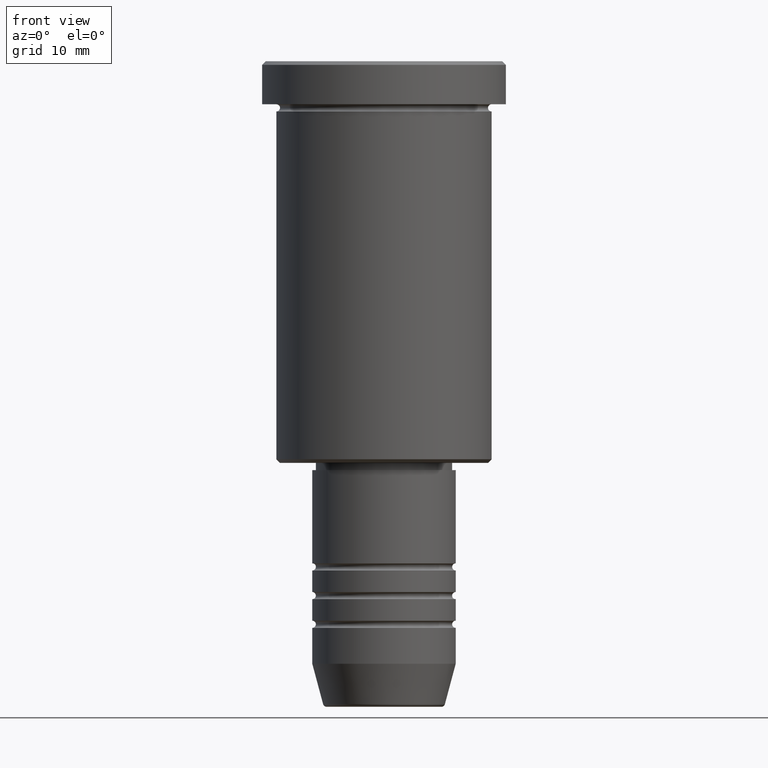
[diagram: clean part render]
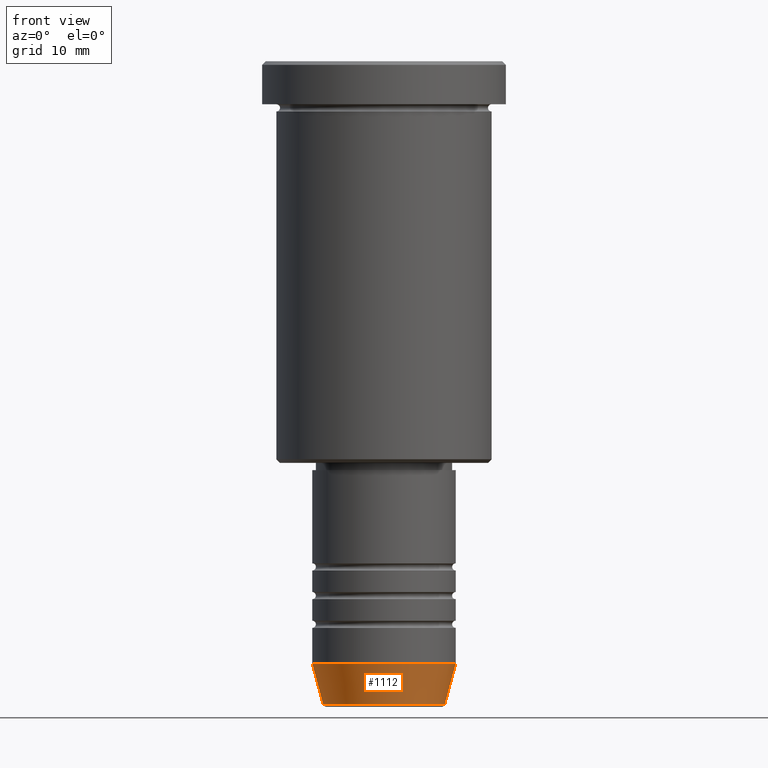
[diagram: same view with one face highlighted and labeled with its STEP entity id]
A machine part, front view. The second image highlights one B-rep face of the part: STEP entity #1112.
In plain terms, the highlighted conical surface has half-angle 15 deg.
Its self-contained STEP definition (entity closure, byte-faithful):
#50 = DIRECTION ( 'NONE',  ( 1.000000000000000000, 0.000000000000000000, 0.000000000000000000 ) ) ;
#160 = DIRECTION ( 'NONE',  ( 1.000000000000000000, 0.000000000000000000, 0.000000000000000000 ) ) ;
#161 = CARTESIAN_POINT ( 'NONE',  ( -8.491604264568312743, 1.132284198685156781E-15, -89.62940952255125637 ) ) ;
#167 = AXIS2_PLACEMENT_3D ( 'NONE', #436, #1066, #50 ) ;
#196 = EDGE_CURVE ( 'NONE', #240, #352, #432, .T. ) ;
#206 = EDGE_LOOP ( 'NONE', ( #1056, #992, #427, #527 ) ) ;
#219 = AXIS2_PLACEMENT_3D ( 'NONE', #1049, #1122, #160 ) ;
#230 = CARTESIAN_POINT ( 'NONE',  ( 8.491604264568312743, 0.000000000000000000, -89.62940952255125637 ) ) ;
#240 = VERTEX_POINT ( 'NONE', #230 ) ;
#302 = EDGE_CURVE ( 'NONE', #1166, #352, #690, .T. ) ;
#352 = VERTEX_POINT ( 'NONE', #429 ) ;
#360 = DIRECTION ( 'NONE',  ( 0.2588190451025214056, 0.000000000000000000, 0.9659258262890680902 ) ) ;
#379 = VECTOR ( 'NONE', #360, 1000.000000000000000 ) ;
#427 = ORIENTED_EDGE ( 'NONE', *, *, #196, .T. ) ;
#429 = CARTESIAN_POINT ( 'NONE',  ( 10.00000000000000178, 0.000000000000000000, -83.99999999999998579 ) ) ;
#432 = LINE ( 'NONE', #730, #379 ) ;
#436 = CARTESIAN_POINT ( 'NONE',  ( 0.000000000000000000, 0.000000000000000000, -83.99999999999998579 ) ) ;
#444 = LINE ( 'NONE', #832, #675 ) ;
#503 = CARTESIAN_POINT ( 'NONE',  ( -10.00000000000000178, 1.224646799147353454E-15, -83.99999999999998579 ) ) ;
#527 = ORIENTED_EDGE ( 'NONE', *, *, #302, .F. ) ;
#675 = VECTOR ( 'NONE', #1065, 1000.000000000000000 ) ;
#686 = CONICAL_SURFACE ( 'NONE', #219, 10.00000000000000178, 0.2617993877991501295 ) ;
#690 = CIRCLE ( 'NONE', #167, 10.00000000000000178 ) ;
#700 = DIRECTION ( 'NONE',  ( -0.000000000000000000, -0.000000000000000000, 1.000000000000000000 ) ) ;
#730 = CARTESIAN_POINT ( 'NONE',  ( 10.00000000000000178, 0.000000000000000000, -83.99999999999998579 ) ) ;
#738 = EDGE_CURVE ( 'NONE', #820, #240, #1001, .T. ) ;
#820 = VERTEX_POINT ( 'NONE', #161 ) ;
#829 = EDGE_CURVE ( 'NONE', #820, #1166, #444, .T. ) ;
#832 = CARTESIAN_POINT ( 'NONE',  ( -10.00000000000000178, 1.224646799147353454E-15, -83.99999999999998579 ) ) ;
#877 = DIRECTION ( 'NONE',  ( 1.000000000000000000, 0.000000000000000000, 0.000000000000000000 ) ) ;
#939 = FACE_OUTER_BOUND ( 'NONE', #206, .T. ) ;
#960 = AXIS2_PLACEMENT_3D ( 'NONE', #1143, #700, #877 ) ;
#992 = ORIENTED_EDGE ( 'NONE', *, *, #738, .T. ) ;
#1001 = CIRCLE ( 'NONE', #960, 8.491604264568312743 ) ;
#1049 = CARTESIAN_POINT ( 'NONE',  ( 0.000000000000000000, 0.000000000000000000, -83.99999999999998579 ) ) ;
#1056 = ORIENTED_EDGE ( 'NONE', *, *, #829, .F. ) ;
#1065 = DIRECTION ( 'NONE',  ( -0.2588190451025214056, 3.169619151431772953E-17, 0.9659258262890680902 ) ) ;
#1066 = DIRECTION ( 'NONE',  ( -0.000000000000000000, -0.000000000000000000, 1.000000000000000000 ) ) ;
#1112 = ADVANCED_FACE ( 'NONE', ( #939 ), #686, .T. ) ;
#1122 = DIRECTION ( 'NONE',  ( -0.000000000000000000, -0.000000000000000000, 1.000000000000000000 ) ) ;
#1143 = CARTESIAN_POINT ( 'NONE',  ( 0.000000000000000000, 0.000000000000000000, -89.62940952255125637 ) ) ;
#1166 = VERTEX_POINT ( 'NONE', #503 ) ;